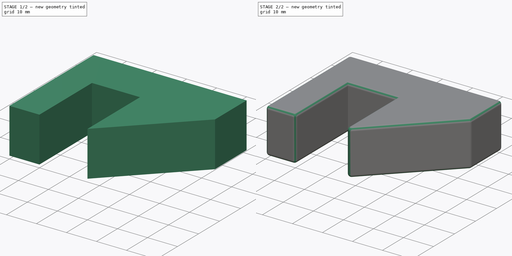
[diagram: build sequence overview — one tinted view per stage of 2, left to right]
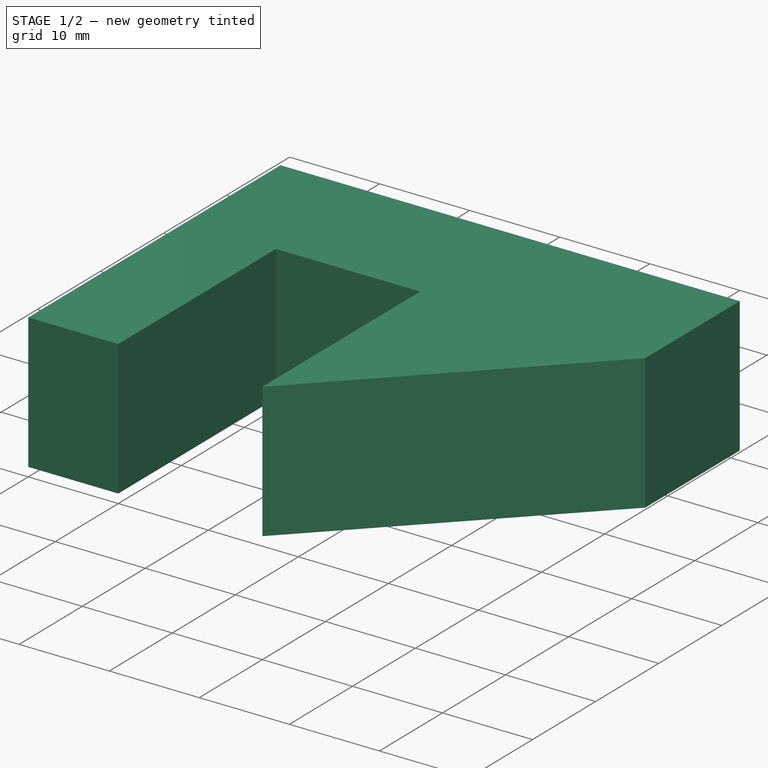
[diagram: stage 1 of 2 — iso view after this stage's code; geometry added in this stage tinted green]
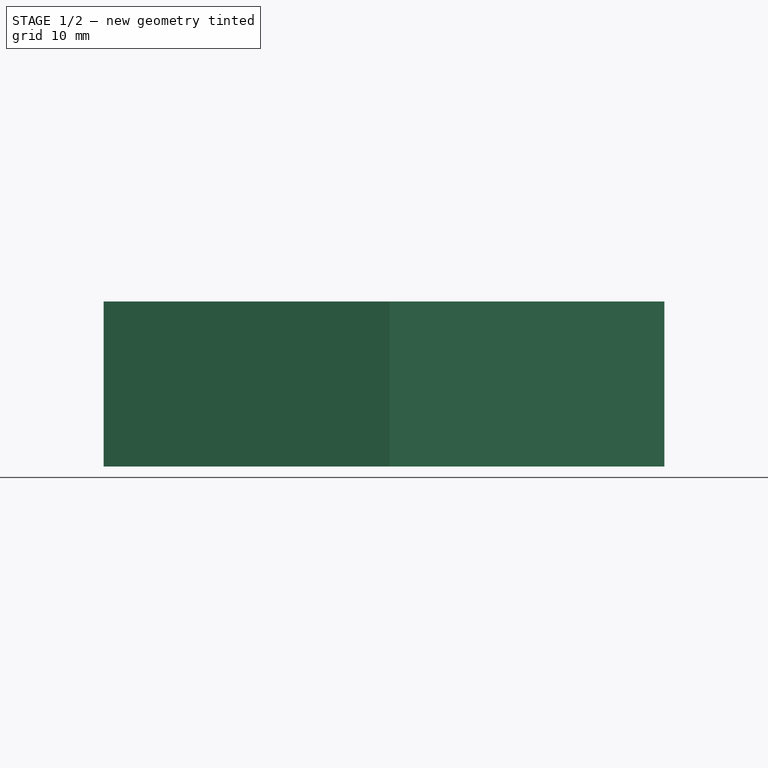
[diagram: stage 1 of 2 — front view after this stage's code; geometry added in this stage tinted green]
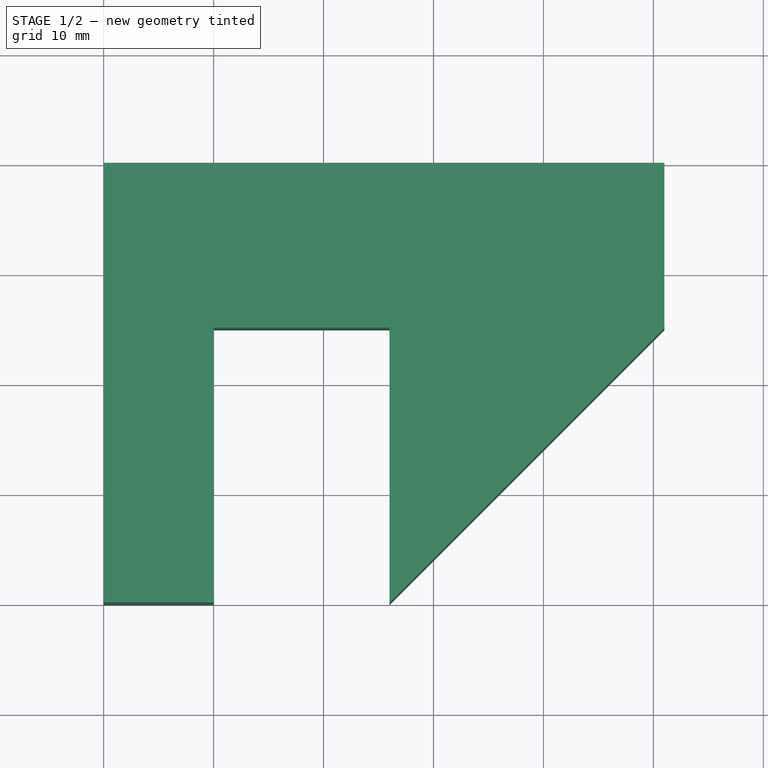
[diagram: stage 1 of 2 — top view after this stage's code; geometry added in this stage tinted green]
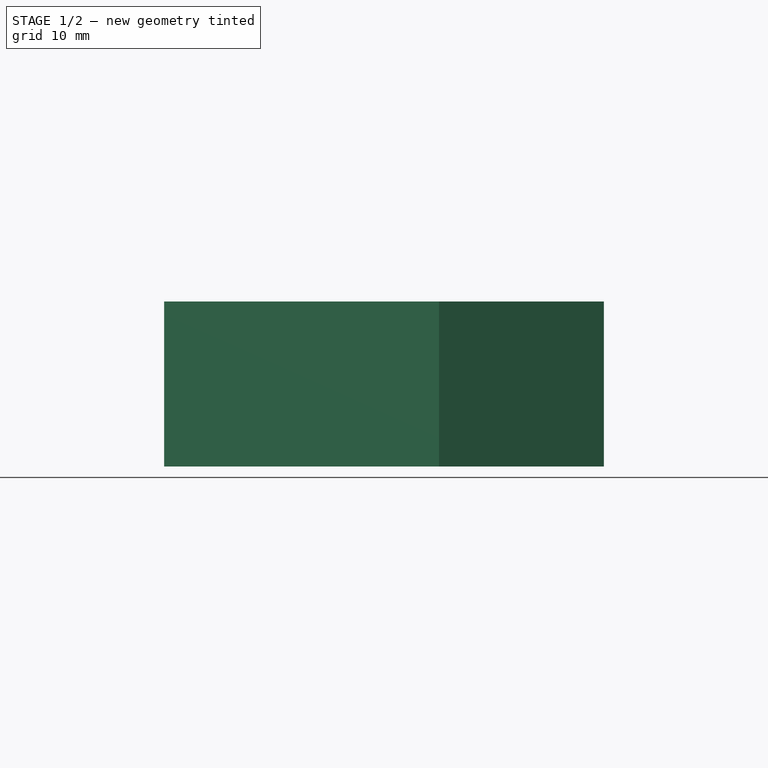
[diagram: stage 1 of 2 — right view after this stage's code; geometry added in this stage tinted green]
FCSTD DOCUMENT  (FreeCAD 0.19R)
Label: zarges
License: All rights reserved
LicenseURL: http://en.wikipedia.org/wiki/All_rights_reserved
objects: Sketcher::SketchObject×1, PartDesign::Pad×1, PartDesign::Fillet×1, PartDesign::Body×1
note: 6 computed .brp shape members not serialized (recipe doc carries the construction recipe); baked Part::Feature solids carry a one-line shape summary decoded from their .brp

FEATURE [Sketcher::SketchObject] Sketch
  FullyConstrained = true
  MapMode = 5
  Support = -> [XY_Plane]
  sketch-geometry (8):
    g0: LineSegment StartX=0 StartY=0 StartZ=0 EndX=0 EndY=40 EndZ=0
    g1: LineSegment StartX=0 StartY=40 StartZ=0 EndX=51 EndY=40 EndZ=0
    g2: LineSegment StartX=51 StartY=40 StartZ=0 EndX=51 EndY=25 EndZ=0
    g3: LineSegment StartX=51 StartY=25 StartZ=0 EndX=26 EndY=0 EndZ=0
    g4: LineSegment StartX=26 StartY=0 StartZ=0 EndX=26 EndY=25 EndZ=0
    g5: LineSegment StartX=26 StartY=25 StartZ=0 EndX=10 EndY=25 EndZ=0
    g6: LineSegment StartX=10 StartY=25 StartZ=0 EndX=10 EndY=0 EndZ=0
    g7: LineSegment StartX=10 StartY=0 StartZ=0 EndX=0 EndY=0 EndZ=0
  constraints (23):
    c: Vertical(g0)
    c: Coincident(g0,g1)
    c: Horizontal(g1)
    c: Coincident(g1,g2)
    c: Vertical(g2)
    c: Coincident(g2,g3)
    c: Coincident(g3,g4)
    c: Vertical(g4)
    c: Coincident(g4,g5)
    c: Horizontal(g5)
    c: Coincident(g5,g6)
    c: Vertical(g6)
    c: Coincident(g6,g7)
    c: Coincident(g7,g0)
    c: Horizontal(g7)
    c: Coincident(g0,g-1)
    c: Horizontal(g3,g6)
    c: DistanceX(g5,g5) = 16
    c: DistanceX(g7,g7) = 10
    c: Horizontal(g4,g2)
    c: DistanceX(g4,g2) = 25
    c: DistanceY(g2,g2) = 15
    c: DistanceY(g6,g6) = 25
FEATURE [PartDesign::Pad] Pad
  Direction = (1,1,1)
  Length = 15
  Length2 = 100
  Profile = -> Sketch
  Type = 0
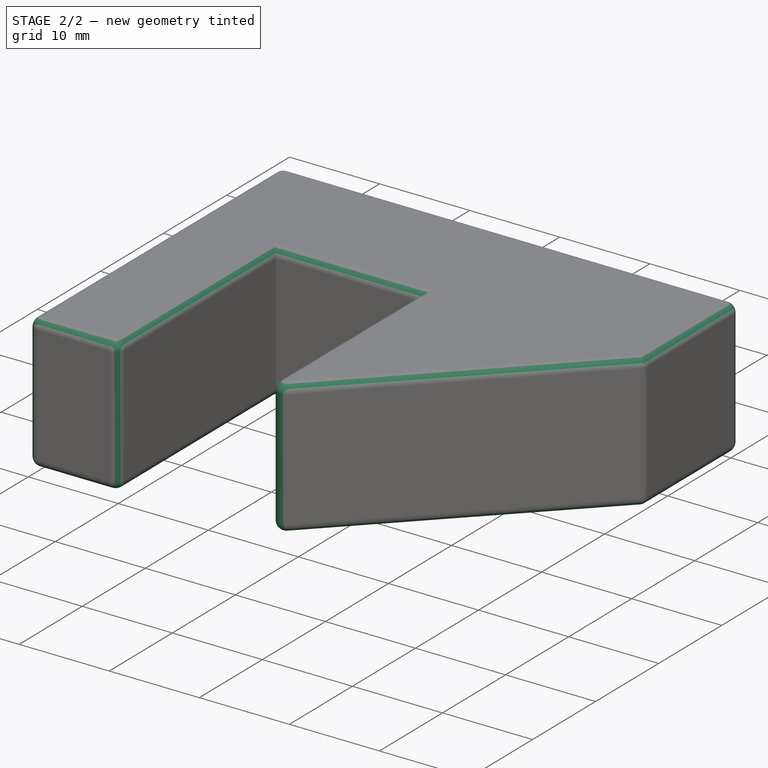
[diagram: stage 2 of 2 — iso view after this stage's code; geometry added in this stage tinted green]
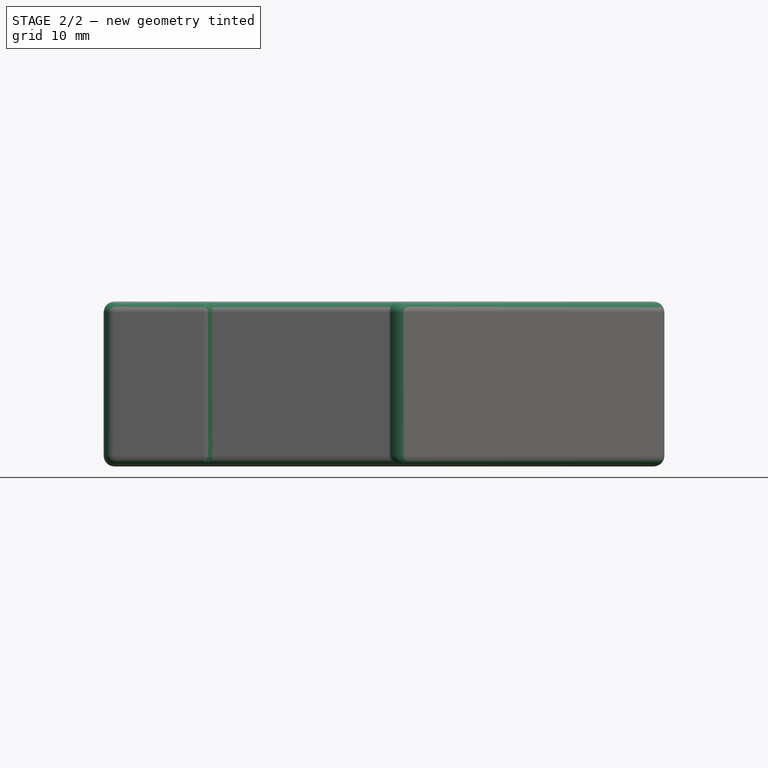
[diagram: stage 2 of 2 — front view after this stage's code; geometry added in this stage tinted green]
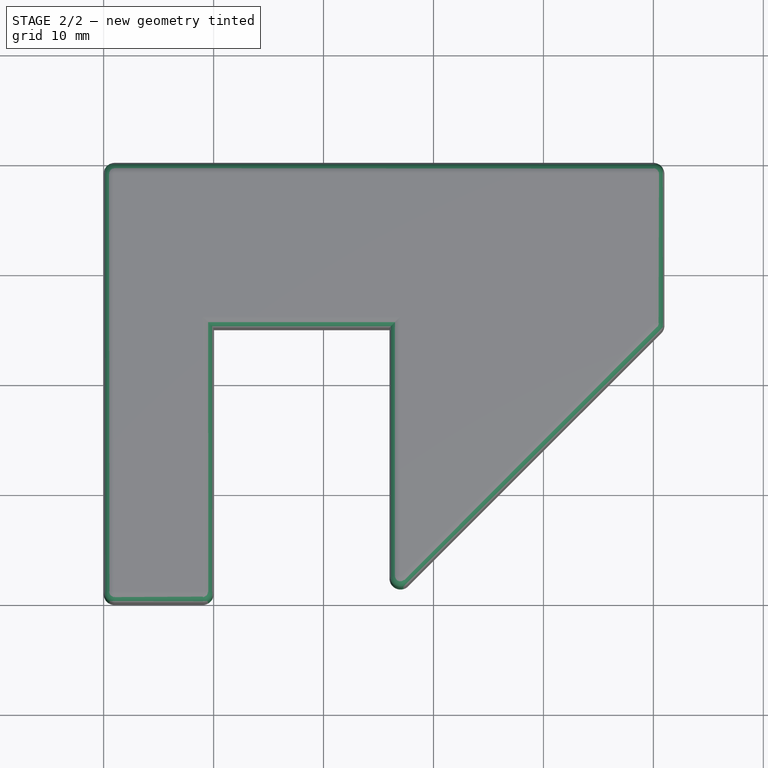
[diagram: stage 2 of 2 — top view after this stage's code; geometry added in this stage tinted green]
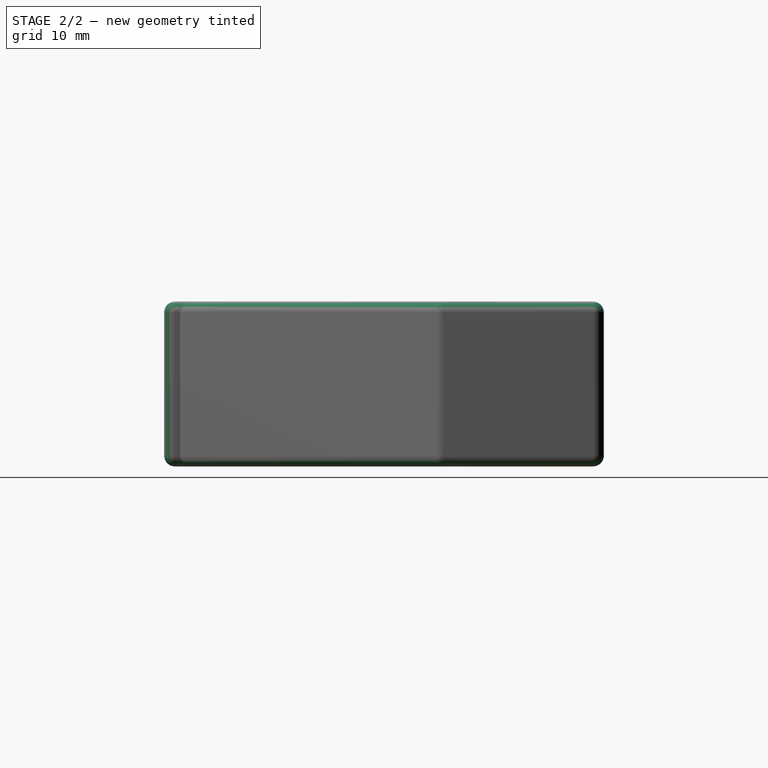
[diagram: stage 2 of 2 — right view after this stage's code; geometry added in this stage tinted green]
FEATURE [PartDesign::Fillet] Fillet
  Base = -> Pad [Edge24,Edge1,Edge20,Edge22,Edge19,Edge16,Edge13,Edge12,Edge11,Edge8,Edge4,Edge3,Edge2,Edge10,Edge18,Edge23,Edge21,Edge15,Edge6,Edge9,Edge5,Edge7]
  BaseFeature = -> Pad
  Radius = 1
  SupportTransform = false
FEATURE [PartDesign::Body] Body
  Group = -> [Sketch,Pad,Fillet]
  Origin = -> Origin
  Tip = -> Fillet
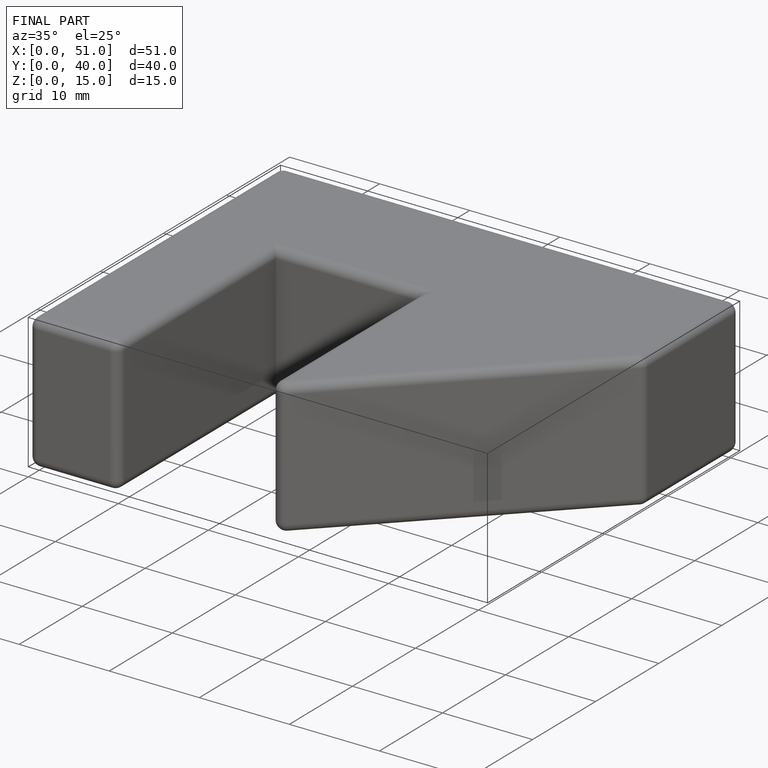
[diagram: finished part — iso view with bounding-box wireframe]
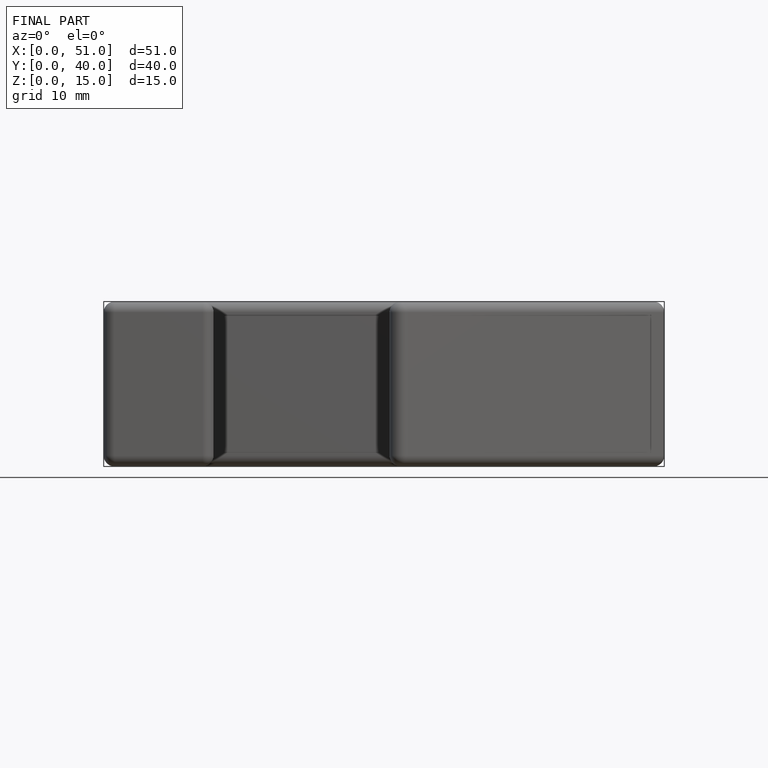
[diagram: finished part — front view with bounding-box wireframe]
